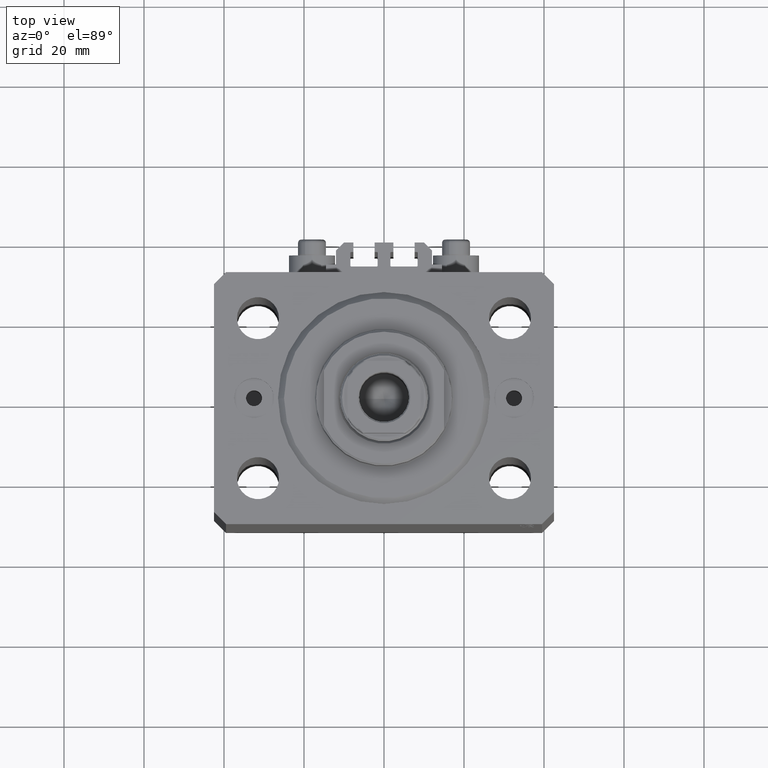
[diagram: clean part render]
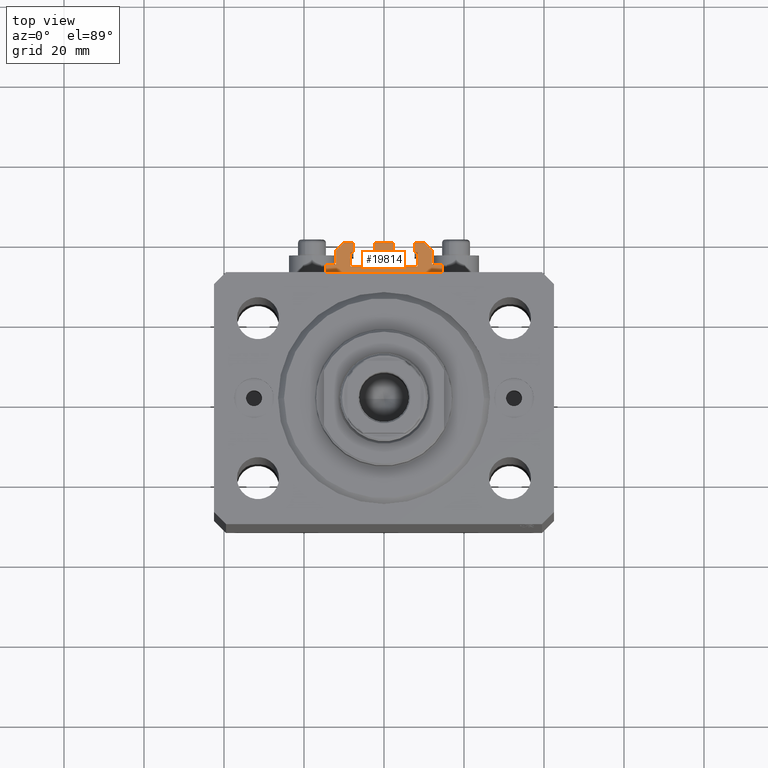
[diagram: same view with one face highlighted and labeled with its STEP entity id]
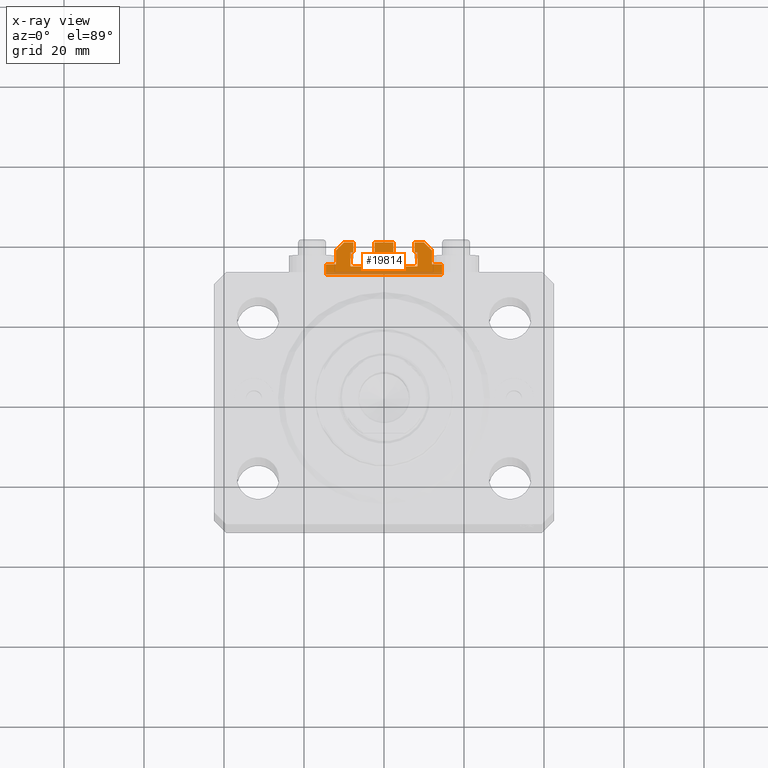
[diagram: x-ray of the same camera — body ghosted, the highlighted face saturated]
A machine part, top view. The second image highlights one B-rep face of the part: STEP entity #19814.
The next image is the same camera in x-ray: the body ghosted, the highlighted face saturated — about 14% of this face is hidden behind the body in this view.
In plain terms, the highlighted planar face has unit normal (0, 0, 1).
Its self-contained STEP definition (entity closure, byte-faithful):
#395 = LINE ( 'NONE', #14950, #43275 ) ;
#1017 = VECTOR ( 'NONE', #20265, 1000.000000000000000 ) ;
#1152 = ORIENTED_EDGE ( 'NONE', *, *, #40542, .T. ) ;
#1654 = CARTESIAN_POINT ( 'NONE',  ( 9.999999999999998224, 39.50000000000002132, -33.00000000000000000 ) ) ;
#1680 = VERTEX_POINT ( 'NONE', #19143 ) ;
#1714 = VECTOR ( 'NONE', #30114, 1000.000000000000000 ) ;
#2052 = CARTESIAN_POINT ( 'NONE',  ( 12.00000000000000000, 37.50000000000002132, -33.00000000000000000 ) ) ;
#2136 = VERTEX_POINT ( 'NONE', #1654 ) ;
#2661 = VERTEX_POINT ( 'NONE', #26134 ) ;
#2779 = CARTESIAN_POINT ( 'NONE',  ( 1.600000000000000533, 33.70000000000000284, -33.00000000000000000 ) ) ;
#2856 = ORIENTED_EDGE ( 'NONE', *, *, #34867, .T. ) ;
#4295 = VECTOR ( 'NONE', #27432, 999.9999999999998863 ) ;
#4317 = CARTESIAN_POINT ( 'NONE',  ( 9.999999999999998224, 39.50000000000002132, -33.00000000000000000 ) ) ;
#4318 = DIRECTION ( 'NONE',  ( 1.000000000000000000, 0.000000000000000000, 0.000000000000000000 ) ) ;
#4373 = AXIS2_PLACEMENT_3D ( 'NONE', #23726, #31130, #30653 ) ;
#4380 = DIRECTION ( 'NONE',  ( 0.000000000000000000, -1.000000000000000000, 0.000000000000000000 ) ) ;
#4481 = CARTESIAN_POINT ( 'NONE',  ( -2.350000000000003642, 39.50000000000000711, -33.00000000000000000 ) ) ;
#4493 = ORIENTED_EDGE ( 'NONE', *, *, #44311, .F. ) ;
#4552 = CARTESIAN_POINT ( 'NONE',  ( -14.50000000000000000, 31.50000000000000000, -33.00000000000000000 ) ) ;
#4564 = AXIS2_PLACEMENT_3D ( 'NONE', #35082, #35549, #10461 ) ;
#4682 = DIRECTION ( 'NONE',  ( 1.000000000000000000, 0.000000000000000000, 0.000000000000000000 ) ) ;
#4686 = CARTESIAN_POINT ( 'NONE',  ( 7.649999999999998579, 39.50000000000002132, -33.00000000000000000 ) ) ;
#4710 = DIRECTION ( 'NONE',  ( 1.000000000000000000, 0.000000000000000000, 0.000000000000000000 ) ) ;
#5272 = AXIS2_PLACEMENT_3D ( 'NONE', #30893, #8906, #44732 ) ;
#5397 = DIRECTION ( 'NONE',  ( 0.000000000000000000, 1.000000000000000000, 0.000000000000000000 ) ) ;
#5453 = LINE ( 'NONE', #34590, #4295 ) ;
#5667 = CARTESIAN_POINT ( 'NONE',  ( 1.800000000000000933, 33.50000000000000000, -33.00000000000000000 ) ) ;
#5692 = CARTESIAN_POINT ( 'NONE',  ( -8.199999999999999289, 37.09999999999999432, -33.00000000000000000 ) ) ;
#5753 = DIRECTION ( 'NONE',  ( 0.000000000000000000, 0.000000000000000000, 1.000000000000000000 ) ) ;
#6109 = CARTESIAN_POINT ( 'NONE',  ( -12.20000000000000107, 33.99999999999998579, -33.00000000000000000 ) ) ;
#6139 = CARTESIAN_POINT ( 'NONE',  ( -8.400000000000000355, 36.89999999999999858, -33.00000000000000000 ) ) ;
#6197 = ORIENTED_EDGE ( 'NONE', *, *, #22981, .T. ) ;
#6302 = ORIENTED_EDGE ( 'NONE', *, *, #26382, .T. ) ;
#6526 = VECTOR ( 'NONE', #17997, 1000.000000000000000 ) ;
#6886 = ORIENTED_EDGE ( 'NONE', *, *, #44759, .T. ) ;
#6904 = VERTEX_POINT ( 'NONE', #43324 ) ;
#7123 = DIRECTION ( 'NONE',  ( 1.000000000000000000, 0.000000000000000000, 0.000000000000000000 ) ) ;
#7524 = LINE ( 'NONE', #44764, #19382 ) ;
#7674 = EDGE_CURVE ( 'NONE', #18390, #22037, #5453, .T. ) ;
#7907 = AXIS2_PLACEMENT_3D ( 'NONE', #36023, #35554, #43641 ) ;
#8028 = EDGE_CURVE ( 'NONE', #19357, #13914, #30719, .T. ) ;
#8273 = CARTESIAN_POINT ( 'NONE',  ( -12.00000000000000000, 34.19999999999999574, -33.00000000000000000 ) ) ;
#8417 = CARTESIAN_POINT ( 'NONE',  ( 8.400000000000000355, 33.70000000000000995, -33.00000000000000000 ) ) ;
#8610 = DIRECTION ( 'NONE',  ( 1.000000000000000000, 0.000000000000000000, 0.000000000000000000 ) ) ;
#8807 = VECTOR ( 'NONE', #26872, 1000.000000000000000 ) ;
#8906 = DIRECTION ( 'NONE',  ( 0.000000000000000000, 0.000000000000000000, 1.000000000000000000 ) ) ;
#8964 = LINE ( 'NONE', #23306, #38754 ) ;
#9156 = DIRECTION ( 'NONE',  ( 1.000000000000000000, 0.000000000000000000, 0.000000000000000000 ) ) ;
#9175 = ORIENTED_EDGE ( 'NONE', *, *, #35506, .T. ) ;
#9374 = CARTESIAN_POINT ( 'NONE',  ( 1.800000000000000933, 33.70000000000000284, -33.00000000000000000 ) ) ;
#9387 = DIRECTION ( 'NONE',  ( 0.000000000000000000, 0.000000000000000000, 1.000000000000000000 ) ) ;
#9472 = LINE ( 'NONE', #17115, #33289 ) ;
#9710 = VERTEX_POINT ( 'NONE', #12815 ) ;
#9711 = VERTEX_POINT ( 'NONE', #8273 ) ;
#10115 = ORIENTED_EDGE ( 'NONE', *, *, #17829, .T. ) ;
#10354 = LINE ( 'NONE', #36152, #6526 ) ;
#10461 = DIRECTION ( 'NONE',  ( 1.000000000000000000, 0.000000000000000000, -0.000000000000000000 ) ) ;
#10746 = CARTESIAN_POINT ( 'NONE',  ( 2.349999999999999645, 37.10000000000000853, -33.00000000000000000 ) ) ;
#11315 = VECTOR ( 'NONE', #7123, 1000.000000000000000 ) ;
#11336 = EDGE_CURVE ( 'NONE', #2661, #9710, #46307, .T. ) ;
#11343 = CARTESIAN_POINT ( 'NONE',  ( -8.399999999999996803, 33.70000000000000284, -33.00000000000000000 ) ) ;
#11546 = EDGE_CURVE ( 'NONE', #39548, #33953, #44770, .T. ) ;
#11573 = CARTESIAN_POINT ( 'NONE',  ( 14.49999999999999645, 34.00000000000001421, -33.00000000000000000 ) ) ;
#11661 = EDGE_CURVE ( 'NONE', #16416, #1680, #35495, .T. ) ;
#11797 = VERTEX_POINT ( 'NONE', #11343 ) ;
#12071 = CARTESIAN_POINT ( 'NONE',  ( -8.199999999999997513, 33.50000000000000000, -33.00000000000000000 ) ) ;
#12571 = ORIENTED_EDGE ( 'NONE', *, *, #11661, .T. ) ;
#12679 = CARTESIAN_POINT ( 'NONE',  ( 12.20000000000000107, 34.20000000000002416, -33.00000000000000000 ) ) ;
#12699 = LINE ( 'NONE', #41833, #33352 ) ;
#12815 = CARTESIAN_POINT ( 'NONE',  ( -1.800000000000000933, 37.10000000000000853, -33.00000000000000000 ) ) ;
#12986 = CARTESIAN_POINT ( 'NONE',  ( 8.199999999999999289, 33.70000000000000284, -33.00000000000000000 ) ) ;
#13010 = EDGE_CURVE ( 'NONE', #29622, #14845, #24885, .T. ) ;
#13536 = DIRECTION ( 'NONE',  ( -5.256737805990328981E-16, 1.000000000000000000, 0.000000000000000000 ) ) ;
#13596 = ORIENTED_EDGE ( 'NONE', *, *, #27985, .F. ) ;
#13914 = VERTEX_POINT ( 'NONE', #19377 ) ;
#13995 = EDGE_CURVE ( 'NONE', #18554, #21177, #34597, .T. ) ;
#14016 = ORIENTED_EDGE ( 'NONE', *, *, #39689, .T. ) ;
#14022 = DIRECTION ( 'NONE',  ( -1.000000000000000000, 0.000000000000000000, 0.000000000000000000 ) ) ;
#14279 = VECTOR ( 'NONE', #17347, 1000.000000000000000 ) ;
#14397 = ORIENTED_EDGE ( 'NONE', *, *, #39075, .F. ) ;
#14492 = VERTEX_POINT ( 'NONE', #33826 ) ;
#14739 = EDGE_CURVE ( 'NONE', #35372, #1680, #42221, .T. ) ;
#14845 = VERTEX_POINT ( 'NONE', #35513 ) ;
#14908 = CARTESIAN_POINT ( 'NONE',  ( 1.800000000000000933, 36.90000000000000568, -33.00000000000000000 ) ) ;
#14950 = CARTESIAN_POINT ( 'NONE',  ( 2.349999999999999645, 37.10000000000000853, -33.00000000000000000 ) ) ;
#14987 = ORIENTED_EDGE ( 'NONE', *, *, #34091, .T. ) ;
#15193 = VERTEX_POINT ( 'NONE', #43283 ) ;
#15217 = ORIENTED_EDGE ( 'NONE', *, *, #43934, .F. ) ;
#15458 = DIRECTION ( 'NONE',  ( 0.000000000000000000, 0.000000000000000000, 1.000000000000000000 ) ) ;
#15492 = AXIS2_PLACEMENT_3D ( 'NONE', #12679, #5753, #8610 ) ;
#16133 = DIRECTION ( 'NONE',  ( 0.000000000000000000, -1.000000000000000000, 0.000000000000000000 ) ) ;
#16178 = ORIENTED_EDGE ( 'NONE', *, *, #39228, .F. ) ;
#16265 = LINE ( 'NONE', #26787, #46414 ) ;
#16344 = VECTOR ( 'NONE', #45139, 1000.000000000000000 ) ;
#16370 = DIRECTION ( 'NONE',  ( -1.000000000000000000, 0.000000000000000000, 0.000000000000000000 ) ) ;
#16416 = VERTEX_POINT ( 'NONE', #33427 ) ;
#16603 = DIRECTION ( 'NONE',  ( -0.7071067811865474617, 0.7071067811865474617, 0.000000000000000000 ) ) ;
#16878 = ORIENTED_EDGE ( 'NONE', *, *, #34694, .T. ) ;
#17115 = CARTESIAN_POINT ( 'NONE',  ( 12.00000000000000178, 34.20000000000002416, -33.00000000000000000 ) ) ;
#17347 = DIRECTION ( 'NONE',  ( 0.000000000000000000, 1.000000000000000000, 0.000000000000000000 ) ) ;
#17751 = VERTEX_POINT ( 'NONE', #25598 ) ;
#17829 = EDGE_CURVE ( 'NONE', #11797, #37798, #16265, .T. ) ;
#17997 = DIRECTION ( 'NONE',  ( -6.776263578034385456E-17, -1.000000000000000000, 0.000000000000000000 ) ) ;
#18053 = VECTOR ( 'NONE', #33936, 1000.000000000000000 ) ;
#18390 = VERTEX_POINT ( 'NONE', #18978 ) ;
#18473 = CARTESIAN_POINT ( 'NONE',  ( -7.650000000000002132, 39.49999999999999289, -33.00000000000000000 ) ) ;
#18554 = VERTEX_POINT ( 'NONE', #36355 ) ;
#18591 = ORIENTED_EDGE ( 'NONE', *, *, #25213, .F. ) ;
#18688 = CARTESIAN_POINT ( 'NONE',  ( 14.49999999999999645, 31.50000000000000000, -33.00000000000000000 ) ) ;
#18978 = CARTESIAN_POINT ( 'NONE',  ( -10.00000000000000000, 39.49999999999999289, -33.00000000000000000 ) ) ;
#19026 = LINE ( 'NONE', #37400, #24727 ) ;
#19143 = CARTESIAN_POINT ( 'NONE',  ( 1.600000000000000533, 36.90000000000000568, -33.00000000000000000 ) ) ;
#19348 = ORIENTED_EDGE ( 'NONE', *, *, #13995, .F. ) ;
#19357 = VERTEX_POINT ( 'NONE', #18688 ) ;
#19377 = CARTESIAN_POINT ( 'NONE',  ( 14.49999999999999645, 34.00000000000001421, -33.00000000000000000 ) ) ;
#19382 = VECTOR ( 'NONE', #33563, 1000.000000000000000 ) ;
#19604 = CARTESIAN_POINT ( 'NONE',  ( -7.650000000000002132, 37.09999999999999432, -33.00000000000000000 ) ) ;
#19656 = VECTOR ( 'NONE', #4380, 1000.000000000000000 ) ;
#19720 = LINE ( 'NONE', #29996, #29233 ) ;
#19814 = ADVANCED_FACE ( 'NONE', ( #45600 ), #31505, .T. ) ;
#20113 = DIRECTION ( 'NONE',  ( 1.000000000000000000, 0.000000000000000000, 0.000000000000000000 ) ) ;
#20131 = CARTESIAN_POINT ( 'NONE',  ( 1.800000000000000933, 37.10000000000000853, -33.00000000000000000 ) ) ;
#20265 = DIRECTION ( 'NONE',  ( 1.000000000000000000, 0.000000000000000000, 0.000000000000000000 ) ) ;
#20496 = LINE ( 'NONE', #28352, #31186 ) ;
#20543 = LINE ( 'NONE', #35101, #11315 ) ;
#21177 = VERTEX_POINT ( 'NONE', #35744 ) ;
#21251 = CARTESIAN_POINT ( 'NONE',  ( -1.600000000000000755, 33.70000000000000284, -33.00000000000000000 ) ) ;
#21784 = CARTESIAN_POINT ( 'NONE',  ( -12.20000000000000107, 33.99999999999998579, -33.00000000000000000 ) ) ;
#21993 = DIRECTION ( 'NONE',  ( 0.000000000000000000, 0.000000000000000000, 1.000000000000000000 ) ) ;
#22037 = VERTEX_POINT ( 'NONE', #34097 ) ;
#22342 = DIRECTION ( 'NONE',  ( -1.000000000000000000, 0.000000000000000000, 0.000000000000000000 ) ) ;
#22515 = VERTEX_POINT ( 'NONE', #18473 ) ;
#22531 = LINE ( 'NONE', #37097, #19656 ) ;
#22572 = LINE ( 'NONE', #11573, #8807 ) ;
#22788 = CARTESIAN_POINT ( 'NONE',  ( 7.649999999999998579, 39.50000000000002132, -33.00000000000000000 ) ) ;
#22981 = EDGE_CURVE ( 'NONE', #37042, #19357, #40376, .T. ) ;
#23111 = CARTESIAN_POINT ( 'NONE',  ( 8.400000000000003908, 36.90000000000001279, -33.00000000000000000 ) ) ;
#23306 = CARTESIAN_POINT ( 'NONE',  ( -7.650000000000002132, 39.49999999999999289, -33.00000000000000000 ) ) ;
#23579 = CIRCLE ( 'NONE', #5272, 0.2000000000000040079 ) ;
#23726 = CARTESIAN_POINT ( 'NONE',  ( -12.20000000000000107, 34.19999999999999574, -33.00000000000000000 ) ) ;
#23816 = ORIENTED_EDGE ( 'NONE', *, *, #46648, .T. ) ;
#23957 = CIRCLE ( 'NONE', #7907, 0.1999999999999987899 ) ;
#24072 = LINE ( 'NONE', #5692, #1017 ) ;
#24283 = CIRCLE ( 'NONE', #41047, 0.1999999999999987899 ) ;
#24413 = EDGE_LOOP ( 'NONE', ( #42294, #6197, #37714, #1152, #19348, #16878, #38396, #37440, #23816, #25744, #13596, #9175, #18591, #32319, #16178, #12571, #28577, #6302, #46006, #4493, #6886, #34093, #30488, #14987, #25680, #2856, #15217, #10115, #25790, #35102, #26266, #14016, #28409, #34811, #14397, #33480 ) ) ;
#24727 = VECTOR ( 'NONE', #4682, 1000.000000000000000 ) ;
#24885 = LINE ( 'NONE', #21784, #26441 ) ;
#24990 = EDGE_CURVE ( 'NONE', #15193, #14492, #24072, .T. ) ;
#25213 = EDGE_CURVE ( 'NONE', #45565, #35285, #26172, .T. ) ;
#25330 = CARTESIAN_POINT ( 'NONE',  ( -1.800000000000000933, 36.90000000000000568, -33.00000000000000000 ) ) ;
#25341 = DIRECTION ( 'NONE',  ( 1.000000000000000000, 0.000000000000000000, 0.000000000000000000 ) ) ;
#25451 = AXIS2_PLACEMENT_3D ( 'NONE', #14908, #29487, #33300 ) ;
#25598 = CARTESIAN_POINT ( 'NONE',  ( 12.00000000000000000, 37.50000000000002132, -33.00000000000000000 ) ) ;
#25680 = ORIENTED_EDGE ( 'NONE', *, *, #11546, .F. ) ;
#25724 = AXIS2_PLACEMENT_3D ( 'NONE', #25330, #21993, #25794 ) ;
#25744 = ORIENTED_EDGE ( 'NONE', *, *, #30824, .T. ) ;
#25790 = ORIENTED_EDGE ( 'NONE', *, *, #26120, .F. ) ;
#25794 = DIRECTION ( 'NONE',  ( 1.000000000000000000, 0.000000000000000000, 0.000000000000000000 ) ) ;
#26120 = EDGE_CURVE ( 'NONE', #15193, #37798, #24283, .T. ) ;
#26134 = CARTESIAN_POINT ( 'NONE',  ( -1.600000000000001421, 36.90000000000000568, -33.00000000000000000 ) ) ;
#26172 = CIRCLE ( 'NONE', #39914, 0.1999999999999987899 ) ;
#26220 = LINE ( 'NONE', #4481, #44520 ) ;
#26266 = ORIENTED_EDGE ( 'NONE', *, *, #45478, .T. ) ;
#26382 = EDGE_CURVE ( 'NONE', #35372, #30057, #20543, .T. ) ;
#26441 = VECTOR ( 'NONE', #39465, 1000.000000000000000 ) ;
#26787 = CARTESIAN_POINT ( 'NONE',  ( -8.399999999999996803, 33.70000000000000284, -33.00000000000000000 ) ) ;
#26872 = DIRECTION ( 'NONE',  ( -1.000000000000000000, 0.000000000000000000, 0.000000000000000000 ) ) ;
#27432 = DIRECTION ( 'NONE',  ( -0.7071067811865472397, -0.7071067811865479058, 0.000000000000000000 ) ) ;
#27548 = EDGE_CURVE ( 'NONE', #45565, #34740, #20496, .T. ) ;
#27985 = EDGE_CURVE ( 'NONE', #37678, #37561, #23579, .T. ) ;
#28334 = VERTEX_POINT ( 'NONE', #34057 ) ;
#28352 = CARTESIAN_POINT ( 'NONE',  ( 8.199999999999999289, 33.50000000000000000, -33.00000000000000000 ) ) ;
#28409 = ORIENTED_EDGE ( 'NONE', *, *, #7674, .T. ) ;
#28577 = ORIENTED_EDGE ( 'NONE', *, *, #14739, .F. ) ;
#28815 = LINE ( 'NONE', #46949, #40884 ) ;
#29233 = VECTOR ( 'NONE', #16133, 1000.000000000000000 ) ;
#29487 = DIRECTION ( 'NONE',  ( 0.000000000000000000, 0.000000000000000000, 1.000000000000000000 ) ) ;
#29622 = VERTEX_POINT ( 'NONE', #6109 ) ;
#29646 = DIRECTION ( 'NONE',  ( 0.000000000000000000, 0.000000000000000000, 1.000000000000000000 ) ) ;
#29994 = DIRECTION ( 'NONE',  ( 0.000000000000000000, 1.000000000000000000, 0.000000000000000000 ) ) ;
#29996 = CARTESIAN_POINT ( 'NONE',  ( -14.50000000000000000, 33.99999999999998579, -33.00000000000000000 ) ) ;
#30057 = VERTEX_POINT ( 'NONE', #10746 ) ;
#30114 = DIRECTION ( 'NONE',  ( 1.000000000000000000, 0.000000000000000000, 0.000000000000000000 ) ) ;
#30358 = LINE ( 'NONE', #4317, #18053 ) ;
#30488 = ORIENTED_EDGE ( 'NONE', *, *, #11336, .F. ) ;
#30653 = DIRECTION ( 'NONE',  ( 1.000000000000000000, 0.000000000000000000, 0.000000000000000000 ) ) ;
#30719 = LINE ( 'NONE', #34767, #43970 ) ;
#30824 = EDGE_CURVE ( 'NONE', #28334, #37561, #12699, .T. ) ;
#30893 = CARTESIAN_POINT ( 'NONE',  ( 8.200000000000001066, 36.90000000000001279, -33.00000000000000000 ) ) ;
#31130 = DIRECTION ( 'NONE',  ( 0.000000000000000000, 0.000000000000000000, 1.000000000000000000 ) ) ;
#31186 = VECTOR ( 'NONE', #14022, 1000.000000000000000 ) ;
#31307 = LINE ( 'NONE', #19604, #16344 ) ;
#31505 = PLANE ( 'NONE',  #4564 ) ;
#32319 = ORIENTED_EDGE ( 'NONE', *, *, #27548, .T. ) ;
#32517 = VERTEX_POINT ( 'NONE', #40889 ) ;
#33289 = VECTOR ( 'NONE', #13536, 1000.000000000000000 ) ;
#33300 = DIRECTION ( 'NONE',  ( 1.000000000000000000, 0.000000000000000000, 0.000000000000000000 ) ) ;
#33352 = VECTOR ( 'NONE', #20113, 1000.000000000000000 ) ;
#33427 = CARTESIAN_POINT ( 'NONE',  ( 1.600000000000001421, 33.70000000000000284, -33.00000000000000000 ) ) ;
#33453 = LINE ( 'NONE', #37027, #36318 ) ;
#33480 = ORIENTED_EDGE ( 'NONE', *, *, #13010, .T. ) ;
#33563 = DIRECTION ( 'NONE',  ( 1.000000000000000000, 0.000000000000000000, 0.000000000000000000 ) ) ;
#33826 = CARTESIAN_POINT ( 'NONE',  ( -7.650000000000002132, 37.09999999999999432, -33.00000000000000000 ) ) ;
#33936 = DIRECTION ( 'NONE',  ( -1.000000000000000000, 0.000000000000000000, 0.000000000000000000 ) ) ;
#33953 = VERTEX_POINT ( 'NONE', #21251 ) ;
#34057 = CARTESIAN_POINT ( 'NONE',  ( 7.649999999999998579, 37.10000000000002274, -33.00000000000000000 ) ) ;
#34091 = EDGE_CURVE ( 'NONE', #2661, #33953, #10354, .T. ) ;
#34093 = ORIENTED_EDGE ( 'NONE', *, *, #45950, .T. ) ;
#34097 = CARTESIAN_POINT ( 'NONE',  ( -12.00000000000000000, 37.49999999999999289, -33.00000000000000000 ) ) ;
#34504 = CARTESIAN_POINT ( 'NONE',  ( -14.50000000000000000, 31.50000000000000000, -33.00000000000000000 ) ) ;
#34590 = CARTESIAN_POINT ( 'NONE',  ( -10.00000000000000000, 39.49999999999999289, -33.00000000000000000 ) ) ;
#34597 = CIRCLE ( 'NONE', #15492, 0.2000000000000022593 ) ;
#34694 = EDGE_CURVE ( 'NONE', #18554, #17751, #9472, .T. ) ;
#34740 = VERTEX_POINT ( 'NONE', #5667 ) ;
#34757 = LINE ( 'NONE', #2052, #41779 ) ;
#34767 = CARTESIAN_POINT ( 'NONE',  ( 14.49999999999999645, 31.50000000000000000, -33.00000000000000000 ) ) ;
#34811 = ORIENTED_EDGE ( 'NONE', *, *, #39027, .T. ) ;
#34867 = EDGE_CURVE ( 'NONE', #39548, #42376, #28815, .T. ) ;
#35082 = CARTESIAN_POINT ( 'NONE',  ( 12.20000000000000107, 34.20000000000002416, -33.00000000000000000 ) ) ;
#35099 = CARTESIAN_POINT ( 'NONE',  ( -2.350000000000003642, 39.50000000000000711, -33.00000000000000000 ) ) ;
#35101 = CARTESIAN_POINT ( 'NONE',  ( 1.800000000000000933, 37.10000000000000853, -33.00000000000000000 ) ) ;
#35102 = ORIENTED_EDGE ( 'NONE', *, *, #24990, .T. ) ;
#35111 = CARTESIAN_POINT ( 'NONE',  ( 8.199999999999999289, 33.50000000000000000, -33.00000000000000000 ) ) ;
#35285 = VERTEX_POINT ( 'NONE', #8417 ) ;
#35372 = VERTEX_POINT ( 'NONE', #20131 ) ;
#35495 = LINE ( 'NONE', #2779, #14279 ) ;
#35506 = EDGE_CURVE ( 'NONE', #37678, #35285, #33453, .T. ) ;
#35513 = CARTESIAN_POINT ( 'NONE',  ( -14.50000000000000000, 33.99999999999998579, -33.00000000000000000 ) ) ;
#35549 = DIRECTION ( 'NONE',  ( 0.000000000000000000, 0.000000000000000000, 1.000000000000000000 ) ) ;
#35554 = DIRECTION ( 'NONE',  ( 0.000000000000000000, 0.000000000000000000, 1.000000000000000000 ) ) ;
#35565 = CARTESIAN_POINT ( 'NONE',  ( 8.200000000000001066, 37.10000000000002274, -33.00000000000000000 ) ) ;
#35744 = CARTESIAN_POINT ( 'NONE',  ( 12.20000000000000107, 34.00000000000001421, -33.00000000000000000 ) ) ;
#36023 = CARTESIAN_POINT ( 'NONE',  ( -8.199999999999997513, 33.70000000000000284, -33.00000000000000000 ) ) ;
#36152 = CARTESIAN_POINT ( 'NONE',  ( -1.600000000000000533, 36.90000000000000568, -33.00000000000000000 ) ) ;
#36318 = VECTOR ( 'NONE', #40610, 1000.000000000000000 ) ;
#36355 = CARTESIAN_POINT ( 'NONE',  ( 11.99999999999999822, 34.20000000000002416, -33.00000000000000000 ) ) ;
#36428 = EDGE_CURVE ( 'NONE', #2136, #46958, #30358, .T. ) ;
#37027 = CARTESIAN_POINT ( 'NONE',  ( 8.400000000000000355, 36.90000000000001279, -33.00000000000000000 ) ) ;
#37042 = VERTEX_POINT ( 'NONE', #34504 ) ;
#37097 = CARTESIAN_POINT ( 'NONE',  ( -12.00000000000000000, 37.49999999999999289, -33.00000000000000000 ) ) ;
#37400 = CARTESIAN_POINT ( 'NONE',  ( -2.350000000000003197, 37.10000000000000853, -33.00000000000000000 ) ) ;
#37440 = ORIENTED_EDGE ( 'NONE', *, *, #36428, .T. ) ;
#37561 = VERTEX_POINT ( 'NONE', #35565 ) ;
#37643 = LINE ( 'NONE', #4686, #42317 ) ;
#37678 = VERTEX_POINT ( 'NONE', #23111 ) ;
#37714 = ORIENTED_EDGE ( 'NONE', *, *, #8028, .T. ) ;
#37798 = VERTEX_POINT ( 'NONE', #6139 ) ;
#38241 = DIRECTION ( 'NONE',  ( -1.084202172485506406E-15, 1.000000000000000000, 0.000000000000000000 ) ) ;
#38396 = ORIENTED_EDGE ( 'NONE', *, *, #38834, .T. ) ;
#38719 = CIRCLE ( 'NONE', #40983, 0.1999999999999998723 ) ;
#38748 = EDGE_CURVE ( 'NONE', #30057, #32517, #395, .T. ) ;
#38754 = VECTOR ( 'NONE', #16370, 1000.000000000000000 ) ;
#38834 = EDGE_CURVE ( 'NONE', #17751, #2136, #34757, .T. ) ;
#39027 = EDGE_CURVE ( 'NONE', #22037, #9711, #22531, .T. ) ;
#39075 = EDGE_CURVE ( 'NONE', #29622, #9711, #40237, .T. ) ;
#39228 = EDGE_CURVE ( 'NONE', #16416, #34740, #38719, .T. ) ;
#39465 = DIRECTION ( 'NONE',  ( -1.000000000000000000, 0.000000000000000000, 0.000000000000000000 ) ) ;
#39548 = VERTEX_POINT ( 'NONE', #39802 ) ;
#39682 = DIRECTION ( 'NONE',  ( 0.000000000000000000, 0.000000000000000000, 1.000000000000000000 ) ) ;
#39689 = EDGE_CURVE ( 'NONE', #22515, #18390, #8964, .T. ) ;
#39802 = CARTESIAN_POINT ( 'NONE',  ( -1.800000000000000933, 33.50000000000000000, -33.00000000000000000 ) ) ;
#39914 = AXIS2_PLACEMENT_3D ( 'NONE', #12986, #9387, #9156 ) ;
#40237 = CIRCLE ( 'NONE', #4373, 0.2000000000000040079 ) ;
#40376 = LINE ( 'NONE', #4552, #1714 ) ;
#40542 = EDGE_CURVE ( 'NONE', #13914, #21177, #22572, .T. ) ;
#40610 = DIRECTION ( 'NONE',  ( -5.421010862427508365E-16, -1.000000000000000000, 0.000000000000000000 ) ) ;
#40884 = VECTOR ( 'NONE', #22342, 1000.000000000000000 ) ;
#40889 = CARTESIAN_POINT ( 'NONE',  ( 2.349999999999999645, 39.50000000000000711, -33.00000000000000000 ) ) ;
#40959 = VERTEX_POINT ( 'NONE', #35099 ) ;
#40983 = AXIS2_PLACEMENT_3D ( 'NONE', #9374, #29646, #4318 ) ;
#41047 = AXIS2_PLACEMENT_3D ( 'NONE', #46837, #39682, #25341 ) ;
#41246 = CARTESIAN_POINT ( 'NONE',  ( -1.800000000000000933, 33.70000000000000284, -33.00000000000000000 ) ) ;
#41779 = VECTOR ( 'NONE', #16603, 1000.000000000000114 ) ;
#41833 = CARTESIAN_POINT ( 'NONE',  ( 7.649999999999998579, 37.10000000000002274, -33.00000000000000000 ) ) ;
#42221 = CIRCLE ( 'NONE', #25451, 0.1999999999999998723 ) ;
#42294 = ORIENTED_EDGE ( 'NONE', *, *, #42358, .T. ) ;
#42317 = VECTOR ( 'NONE', #45037, 1000.000000000000000 ) ;
#42358 = EDGE_CURVE ( 'NONE', #14845, #37042, #19720, .T. ) ;
#42376 = VERTEX_POINT ( 'NONE', #12071 ) ;
#43275 = VECTOR ( 'NONE', #29994, 1000.000000000000000 ) ;
#43283 = CARTESIAN_POINT ( 'NONE',  ( -8.199999999999999289, 37.09999999999999432, -33.00000000000000000 ) ) ;
#43324 = CARTESIAN_POINT ( 'NONE',  ( -2.350000000000003197, 37.10000000000000853, -33.00000000000000000 ) ) ;
#43641 = DIRECTION ( 'NONE',  ( 1.000000000000000000, 0.000000000000000000, 0.000000000000000000 ) ) ;
#43934 = EDGE_CURVE ( 'NONE', #11797, #42376, #23957, .T. ) ;
#43970 = VECTOR ( 'NONE', #5397, 1000.000000000000000 ) ;
#44021 = AXIS2_PLACEMENT_3D ( 'NONE', #41246, #15458, #4710 ) ;
#44311 = EDGE_CURVE ( 'NONE', #40959, #32517, #7524, .T. ) ;
#44520 = VECTOR ( 'NONE', #45069, 1000.000000000000000 ) ;
#44732 = DIRECTION ( 'NONE',  ( 1.000000000000000000, 0.000000000000000000, 0.000000000000000000 ) ) ;
#44759 = EDGE_CURVE ( 'NONE', #40959, #6904, #26220, .T. ) ;
#44764 = CARTESIAN_POINT ( 'NONE',  ( -2.350000000000003642, 39.50000000000000711, -33.00000000000000000 ) ) ;
#44770 = CIRCLE ( 'NONE', #44021, 0.1999999999999994282 ) ;
#45037 = DIRECTION ( 'NONE',  ( 0.000000000000000000, -1.000000000000000000, 0.000000000000000000 ) ) ;
#45069 = DIRECTION ( 'NONE',  ( 1.807003620809174632E-16, -1.000000000000000000, 0.000000000000000000 ) ) ;
#45139 = DIRECTION ( 'NONE',  ( 0.000000000000000000, 1.000000000000000000, 0.000000000000000000 ) ) ;
#45478 = EDGE_CURVE ( 'NONE', #14492, #22515, #31307, .T. ) ;
#45565 = VERTEX_POINT ( 'NONE', #35111 ) ;
#45600 = FACE_OUTER_BOUND ( 'NONE', #24413, .T. ) ;
#45950 = EDGE_CURVE ( 'NONE', #6904, #9710, #19026, .T. ) ;
#46006 = ORIENTED_EDGE ( 'NONE', *, *, #38748, .T. ) ;
#46307 = CIRCLE ( 'NONE', #25724, 0.1999999999999996503 ) ;
#46414 = VECTOR ( 'NONE', #38241, 1000.000000000000000 ) ;
#46648 = EDGE_CURVE ( 'NONE', #46958, #28334, #37643, .T. ) ;
#46837 = CARTESIAN_POINT ( 'NONE',  ( -8.199999999999999289, 36.89999999999999858, -33.00000000000000000 ) ) ;
#46949 = CARTESIAN_POINT ( 'NONE',  ( -1.800000000000000933, 33.50000000000000000, -33.00000000000000000 ) ) ;
#46958 = VERTEX_POINT ( 'NONE', #22788 ) ;